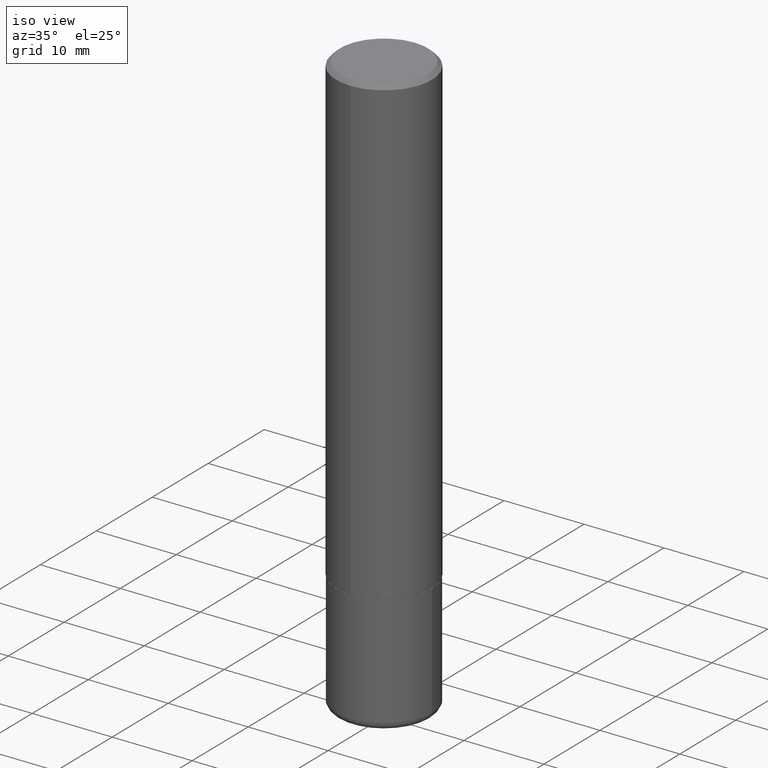
[diagram: clean part render]
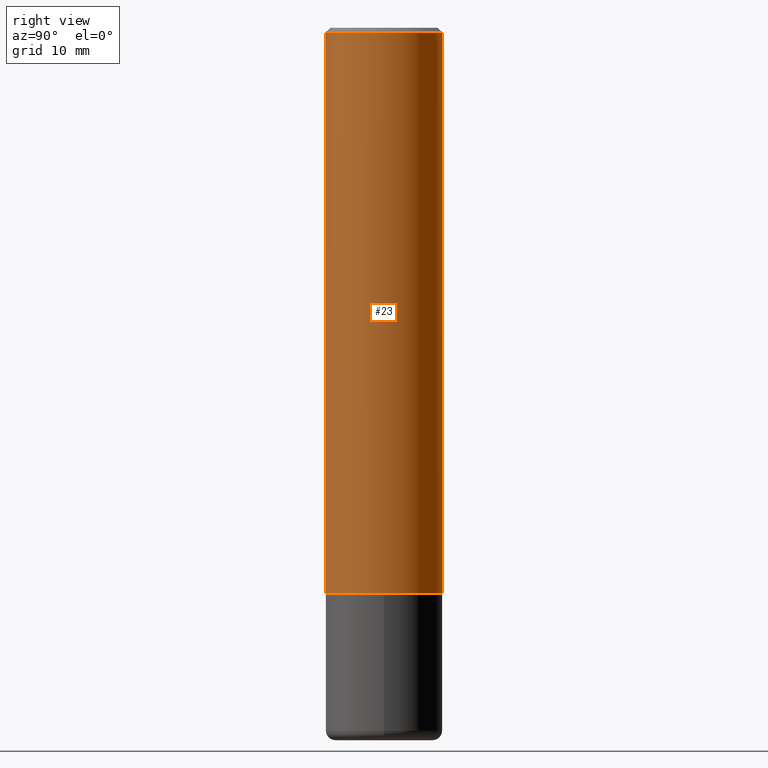
[diagram: tour spotlight — one face highlighted and labeled with its STEP entity id]
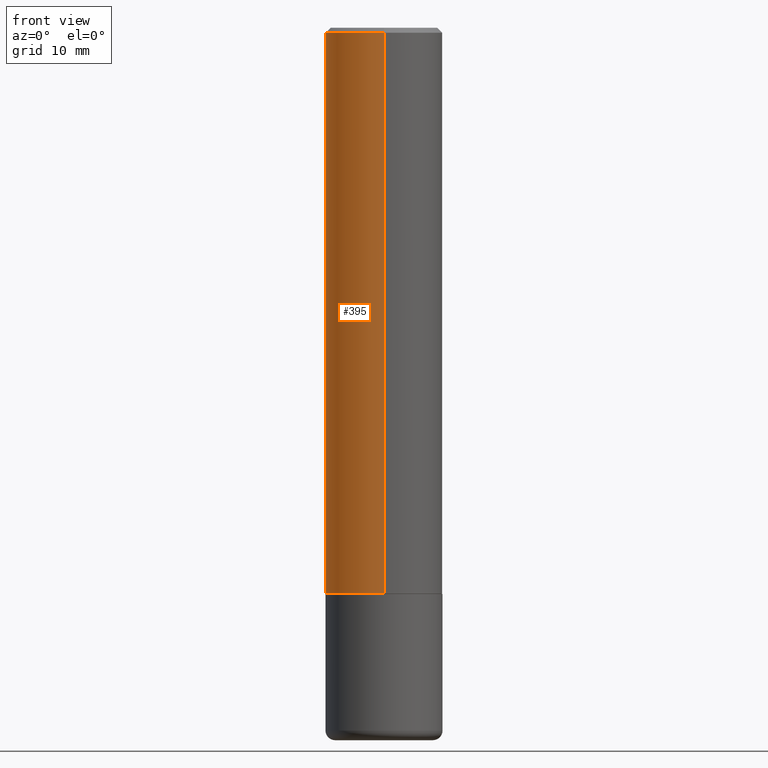
[diagram: tour spotlight — one face highlighted and labeled with its STEP entity id]
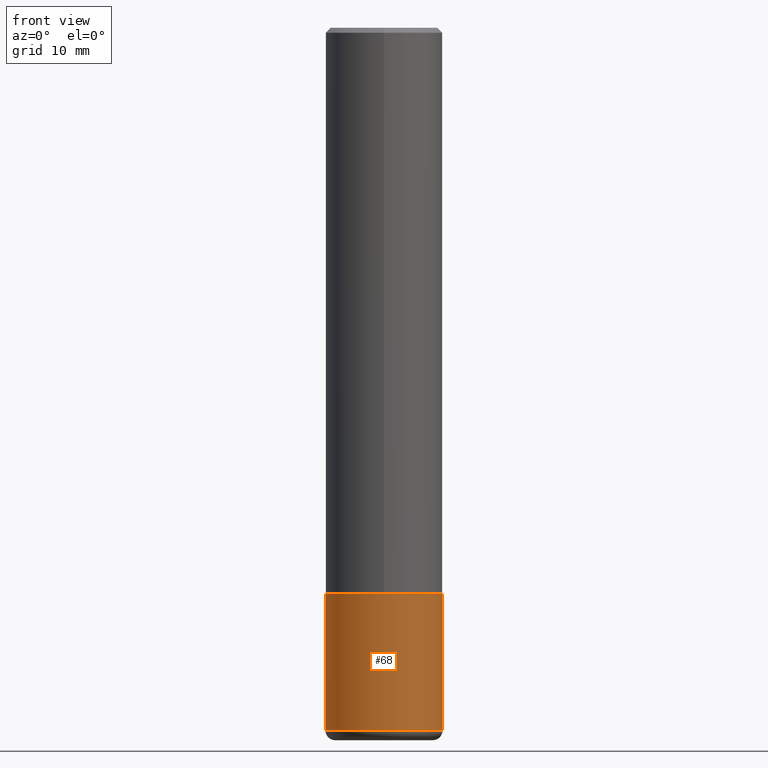
[diagram: tour spotlight — one face highlighted and labeled with its STEP entity id]
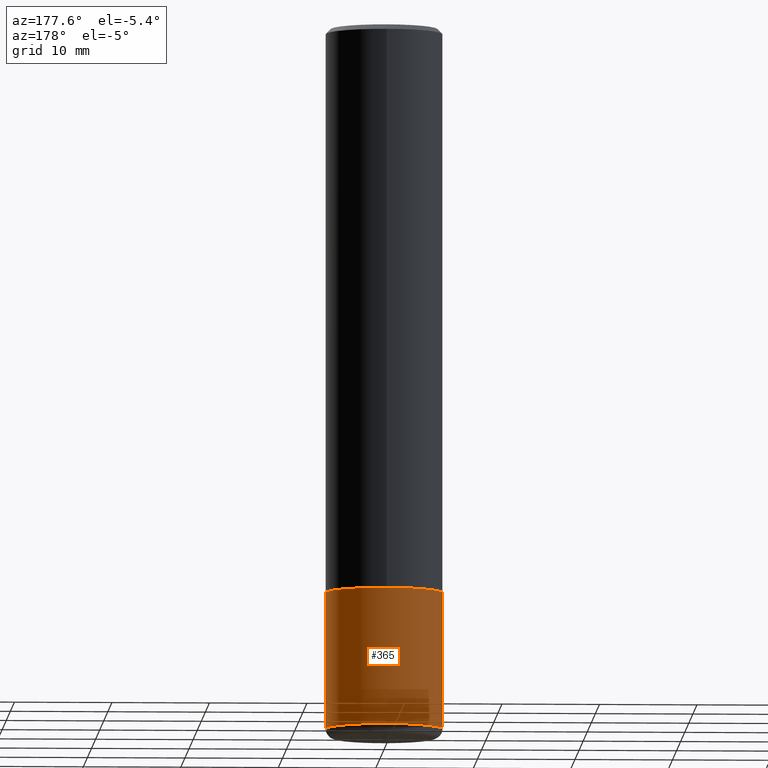
[diagram: tour spotlight — one face highlighted and labeled with its STEP entity id]
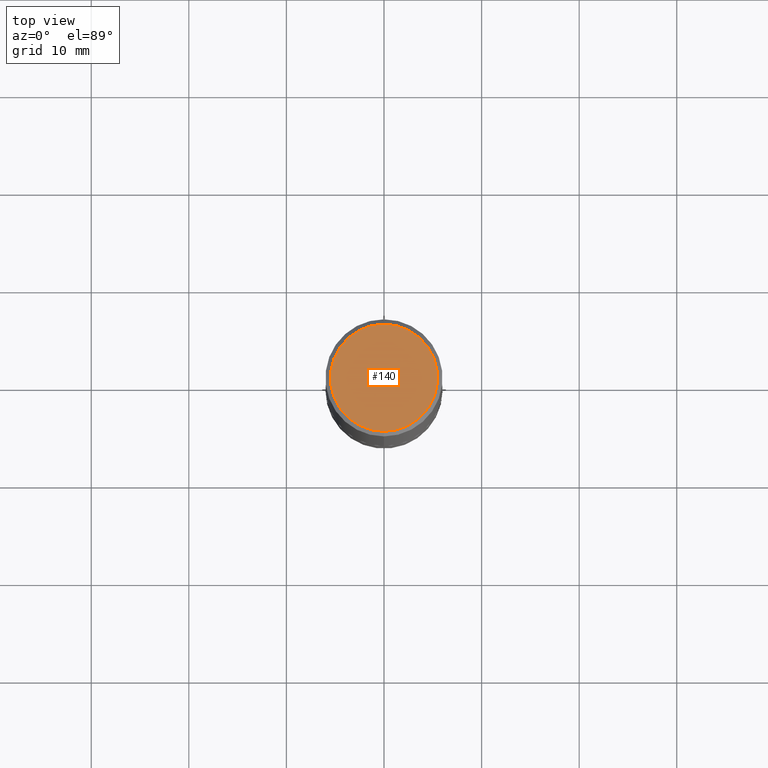
[diagram: tour spotlight — one face highlighted and labeled with its STEP entity id]
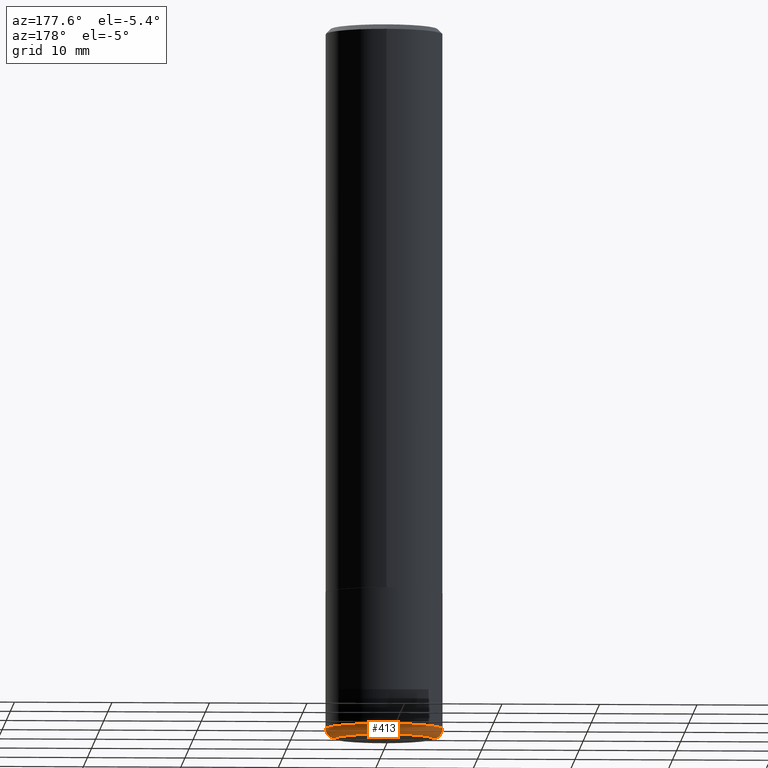
[diagram: tour spotlight — one face highlighted and labeled with its STEP entity id]
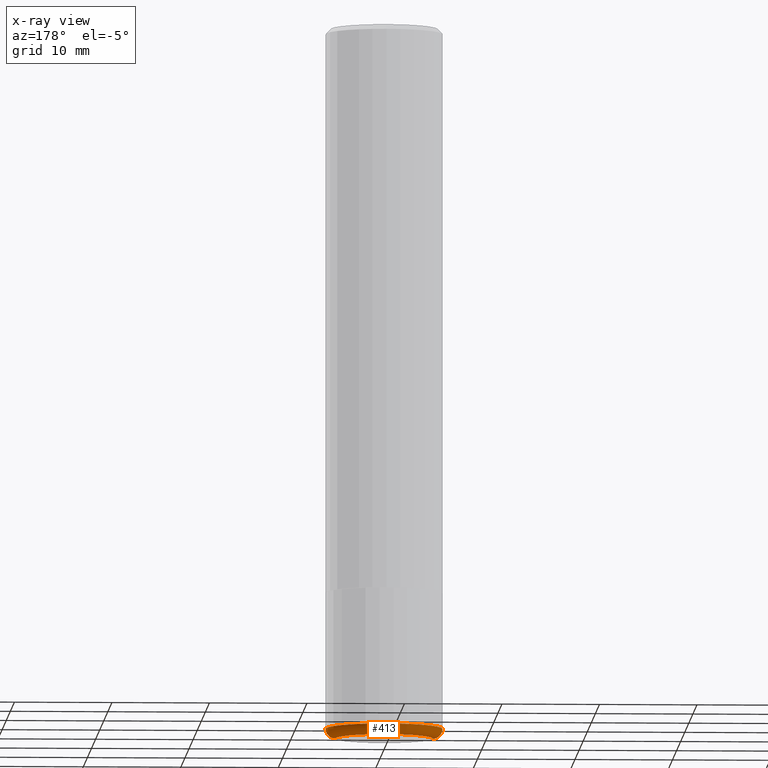
[diagram: x-ray of the same camera — body ghosted, this tour face saturated]
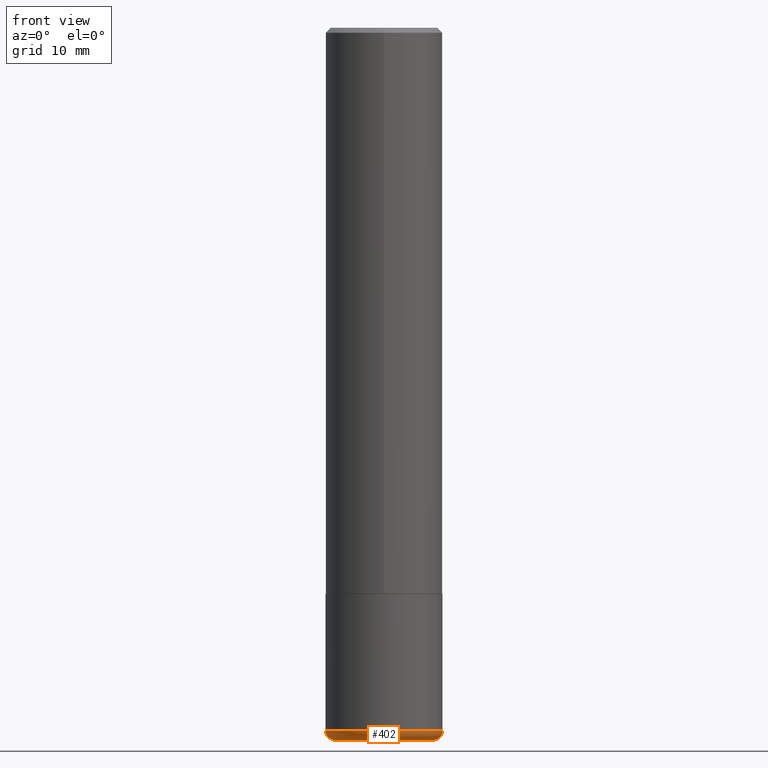
[diagram: tour spotlight — one face highlighted and labeled with its STEP entity id]
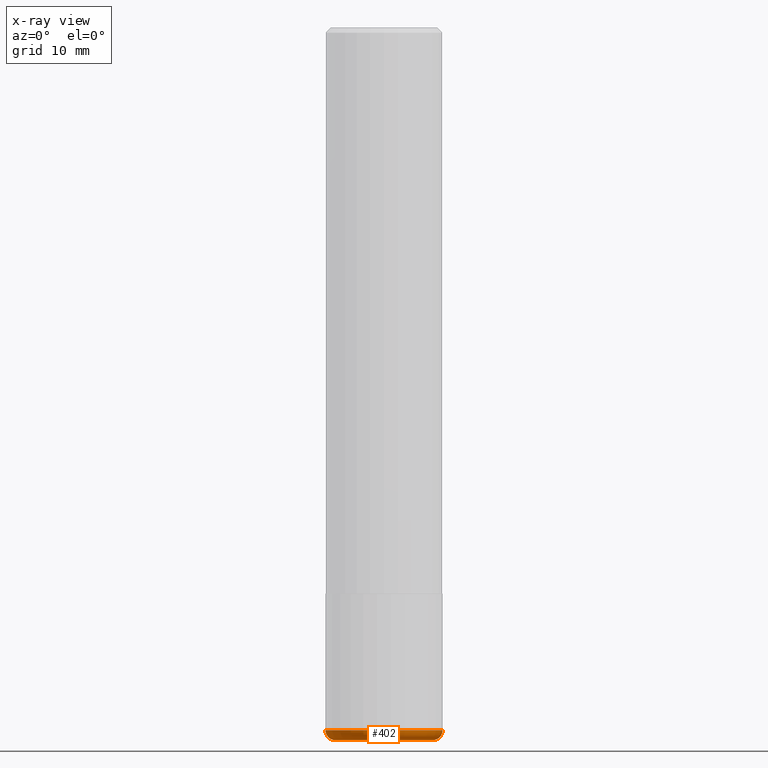
[diagram: x-ray of the same camera — body ghosted, this tour face saturated]
A machine part: a face-by-face anatomy tour. The part has 14 B-rep faces; the first image is the clean iso view, then the 7 largest visible faces are spotlighted one at a time (largest first), each with its STEP entity span.

Face 1 — right view, entity #23. In plain terms, the highlighted cylindrical surface (partial cylindrical patch) has radius 5.9995 mm, axis along (-0, 0, 1).
Definition (entity closure, byte-faithful):
#23 = ADVANCED_FACE ( 'NONE', ( #240 ), #149, .T. ) ;
#38 = CARTESIAN_POINT ( 'NONE',  ( -1.649375784469442094E-15, -0.2362000000000082367, -2.282399999999999096 ) ) ;
#41 = AXIS2_PLACEMENT_3D ( 'NONE', #411, #128, #251 ) ;
#42 = DIRECTION ( 'NONE',  ( -6.982962677686265922E-15, -1.000000000000000000, 3.490590113930062596E-15 ) ) ;
#51 = DIRECTION ( 'NONE',  ( -2.446091145215684809E-29, 3.490590113930062990E-15, 1.000000000000000000 ) ) ;
#56 = ORIENTED_EDGE ( 'NONE', *, *, #321, .T. ) ;
#58 = EDGE_CURVE ( 'NONE', #127, #288, #253, .T. ) ;
#61 = ORIENTED_EDGE ( 'NONE', *, *, #177, .F. ) ;
#65 = EDGE_CURVE ( 'NONE', #279, #171, #375, .T. ) ;
#94 = ORIENTED_EDGE ( 'NONE', *, *, #65, .F. ) ;
#118 = VECTOR ( 'NONE', #51, 39.37007874015748143 ) ;
#127 = VERTEX_POINT ( 'NONE', #373 ) ;
#128 = DIRECTION ( 'NONE',  ( -2.446091145215684809E-29, 3.490590113930062596E-15, 1.000000000000000000 ) ) ;
#147 = EDGE_LOOP ( 'NONE', ( #56, #200, #61, #94 ) ) ;
#149 = CYLINDRICAL_SURFACE ( 'NONE', #347, 0.2362000000000001321 ) ;
#156 = DIRECTION ( 'NONE',  ( -2.446091145215684809E-29, 3.490590113930062990E-15, 1.000000000000000000 ) ) ;
#159 = CARTESIAN_POINT ( 'NONE',  ( -1.620449627073634881E-15, -0.2362000000000000210, -0.01999999999999922673 ) ) ;
#171 = VERTEX_POINT ( 'NONE', #159 ) ;
#177 = EDGE_CURVE ( 'NONE', #171, #288, #225, .T. ) ;
#200 = ORIENTED_EDGE ( 'NONE', *, *, #58, .T. ) ;
#225 = CIRCLE ( 'NONE', #41, 0.2361999999999999655 ) ;
#238 = DIRECTION ( 'NONE',  ( -2.446091145215684809E-29, 3.490590113930062596E-15, 1.000000000000000000 ) ) ;
#240 = FACE_OUTER_BOUND ( 'NONE', #147, .T. ) ;
#245 = CARTESIAN_POINT ( 'NONE',  ( 1.678301941865357380E-15, 0.2362000000000001321, -8.244773849102812872E-16 ) ) ;
#251 = DIRECTION ( 'NONE',  ( -6.982962677686265922E-15, -1.000000000000000000, 3.487819265831412139E-15 ) ) ;
#253 = LINE ( 'NONE', #245, #118 ) ;
#276 = CARTESIAN_POINT ( 'NONE',  ( 0.000000000000000000, 0.000000000000000000, 0.000000000000000000 ) ) ;
#279 = VERTEX_POINT ( 'NONE', #38 ) ;
#288 = VERTEX_POINT ( 'NONE', #317 ) ;
#293 = DIRECTION ( 'NONE',  ( -6.982962677686265922E-15, -1.000000000000000000, 3.469747663417773058E-15 ) ) ;
#297 = CIRCLE ( 'NONE', #333, 0.2362000000000002709 ) ;
#306 = CARTESIAN_POINT ( 'NONE',  ( -1.649375784469496920E-15, -0.2362000000000001321, 8.244773849102812872E-16 ) ) ;
#317 = CARTESIAN_POINT ( 'NONE',  ( 1.649375784469496131E-15, 0.2361999999999998823, -0.02000000000000087472 ) ) ;
#321 = EDGE_CURVE ( 'NONE', #279, #127, #297, .T. ) ;
#322 = CARTESIAN_POINT ( 'NONE',  ( 5.582958429840278159E-29, -7.966922876033974946E-15, -2.282399999999999984 ) ) ;
#333 = AXIS2_PLACEMENT_3D ( 'NONE', #322, #417, #293 ) ;
#347 = AXIS2_PLACEMENT_3D ( 'NONE', #276, #238, #42 ) ;
#373 = CARTESIAN_POINT ( 'NONE',  ( 1.678301941865385976E-15, 0.2361999999999923050, -2.282400000000000873 ) ) ;
#375 = LINE ( 'NONE', #306, #386 ) ;
#386 = VECTOR ( 'NONE', #156, 39.37007874015748143 ) ;
#411 = CARTESIAN_POINT ( 'NONE',  ( 4.892182290431382475E-31, -6.981180227860141955E-17, -0.02000000000000005246 ) ) ;
#417 = DIRECTION ( 'NONE',  ( -2.446091145215684809E-29, 3.490590113930062596E-15, 1.000000000000000000 ) ) ;

Face 2 — front view, entity #395. In plain terms, the highlighted cylindrical surface (partial cylindrical patch) has radius 5.9995 mm, axis along (-0, 0, 1).
Definition (entity closure, byte-faithful):
#12 = ORIENTED_EDGE ( 'NONE', *, *, #123, .F. ) ;
#13 = EDGE_CURVE ( 'NONE', #127, #279, #62, .T. ) ;
#26 = AXIS2_PLACEMENT_3D ( 'NONE', #341, #221, #284 ) ;
#38 = CARTESIAN_POINT ( 'NONE',  ( -1.649375784469442094E-15, -0.2362000000000082367, -2.282399999999999096 ) ) ;
#51 = DIRECTION ( 'NONE',  ( -2.446091145215684809E-29, 3.490590113930062990E-15, 1.000000000000000000 ) ) ;
#58 = EDGE_CURVE ( 'NONE', #127, #288, #253, .T. ) ;
#62 = CIRCLE ( 'NONE', #274, 0.2362000000000002709 ) ;
#65 = EDGE_CURVE ( 'NONE', #279, #171, #375, .T. ) ;
#95 = DIRECTION ( 'NONE',  ( -6.982962677686265922E-15, -1.000000000000000000, 3.490590113930062596E-15 ) ) ;
#104 = CYLINDRICAL_SURFACE ( 'NONE', #226, 0.2362000000000001321 ) ;
#105 = ORIENTED_EDGE ( 'NONE', *, *, #58, .F. ) ;
#108 = CARTESIAN_POINT ( 'NONE',  ( 0.000000000000000000, 0.000000000000000000, 0.000000000000000000 ) ) ;
#118 = VECTOR ( 'NONE', #51, 39.37007874015748143 ) ;
#119 = CARTESIAN_POINT ( 'NONE',  ( 5.582958429840278159E-29, -7.966922876033974946E-15, -2.282399999999999984 ) ) ;
#123 = EDGE_CURVE ( 'NONE', #288, #171, #212, .T. ) ;
#127 = VERTEX_POINT ( 'NONE', #373 ) ;
#141 = FACE_OUTER_BOUND ( 'NONE', #318, .T. ) ;
#156 = DIRECTION ( 'NONE',  ( -2.446091145215684809E-29, 3.490590113930062990E-15, 1.000000000000000000 ) ) ;
#159 = CARTESIAN_POINT ( 'NONE',  ( -1.620449627073634881E-15, -0.2362000000000000210, -0.01999999999999922673 ) ) ;
#171 = VERTEX_POINT ( 'NONE', #159 ) ;
#206 = DIRECTION ( 'NONE',  ( -2.446091145215684809E-29, 3.490590113930062596E-15, 1.000000000000000000 ) ) ;
#212 = CIRCLE ( 'NONE', #26, 0.2361999999999999655 ) ;
#221 = DIRECTION ( 'NONE',  ( -2.446091145215684809E-29, 3.490590113930062596E-15, 1.000000000000000000 ) ) ;
#226 = AXIS2_PLACEMENT_3D ( 'NONE', #108, #206, #95 ) ;
#245 = CARTESIAN_POINT ( 'NONE',  ( 1.678301941865357380E-15, 0.2362000000000001321, -8.244773849102812872E-16 ) ) ;
#253 = LINE ( 'NONE', #245, #118 ) ;
#274 = AXIS2_PLACEMENT_3D ( 'NONE', #119, #335, #330 ) ;
#279 = VERTEX_POINT ( 'NONE', #38 ) ;
#284 = DIRECTION ( 'NONE',  ( -6.982962677686265922E-15, -1.000000000000000000, 3.487819265831412139E-15 ) ) ;
#288 = VERTEX_POINT ( 'NONE', #317 ) ;
#291 = ORIENTED_EDGE ( 'NONE', *, *, #13, .T. ) ;
#306 = CARTESIAN_POINT ( 'NONE',  ( -1.649375784469496920E-15, -0.2362000000000001321, 8.244773849102812872E-16 ) ) ;
#317 = CARTESIAN_POINT ( 'NONE',  ( 1.649375784469496131E-15, 0.2361999999999998823, -0.02000000000000087472 ) ) ;
#318 = EDGE_LOOP ( 'NONE', ( #105, #291, #325, #12 ) ) ;
#325 = ORIENTED_EDGE ( 'NONE', *, *, #65, .T. ) ;
#330 = DIRECTION ( 'NONE',  ( -6.982962677686265922E-15, -1.000000000000000000, 3.469747663417773058E-15 ) ) ;
#335 = DIRECTION ( 'NONE',  ( -2.446091145215684809E-29, 3.490590113930062596E-15, 1.000000000000000000 ) ) ;
#341 = CARTESIAN_POINT ( 'NONE',  ( 4.892182290431382475E-31, -6.981180227860141955E-17, -0.02000000000000005246 ) ) ;
#373 = CARTESIAN_POINT ( 'NONE',  ( 1.678301941865385976E-15, 0.2361999999999923050, -2.282400000000000873 ) ) ;
#375 = LINE ( 'NONE', #306, #386 ) ;
#386 = VECTOR ( 'NONE', #156, 39.37007874015748143 ) ;
#395 = ADVANCED_FACE ( 'NONE', ( #141 ), #104, .T. ) ;

Face 3 — front view, entity #68. In plain terms, the highlighted cylindrical surface (partial cylindrical patch) has radius 5.9995 mm, axis along (-0, 0, 1).
Definition (entity closure, byte-faithful):
#9 = DIRECTION ( 'NONE',  ( -2.445468806185136597E-29, 3.491481338843145583E-15, 1.000000000000000000 ) ) ;
#18 = VECTOR ( 'NONE', #282, 39.37007874015748143 ) ;
#19 = DIRECTION ( 'NONE',  ( -2.445468806185136597E-29, 3.491481338843145583E-15, 1.000000000000000000 ) ) ;
#24 = CARTESIAN_POINT ( 'NONE',  ( 0.2362000000000000210, -1.154632878755427583E-14, -2.834600000000000009 ) ) ;
#25 = ORIENTED_EDGE ( 'NONE', *, *, #181, .T. ) ;
#32 = LINE ( 'NONE', #308, #310 ) ;
#57 = CARTESIAN_POINT ( 'NONE',  ( 0.2361999999999999933, -9.621824273583934567E-15, -2.283399999999999874 ) ) ;
#60 = DIRECTION ( 'NONE',  ( -2.445468806185136877E-29, 3.491481338843145188E-15, 1.000000000000000000 ) ) ;
#68 = ADVANCED_FACE ( 'NONE', ( #184 ), #302, .T. ) ;
#70 = VERTEX_POINT ( 'NONE', #193 ) ;
#96 = DIRECTION ( 'NONE',  ( -2.445468806185136597E-29, 3.491481338843145583E-15, 1.000000000000000000 ) ) ;
#97 = VERTEX_POINT ( 'NONE', #346 ) ;
#98 = CIRCLE ( 'NONE', #326, 0.2361999999999999933 ) ;
#102 = VERTEX_POINT ( 'NONE', #57 ) ;
#131 = CARTESIAN_POINT ( 'NONE',  ( 6.931925878012387517E-29, -9.896953003084780885E-15, -2.834600000000000009 ) ) ;
#145 = AXIS2_PLACEMENT_3D ( 'NONE', #154, #19, #152 ) ;
#146 = EDGE_CURVE ( 'NONE', #97, #70, #32, .T. ) ;
#152 = DIRECTION ( 'NONE',  ( 1.000000000000000000, -6.982962677686266711E-15, 4.876176775795936353E-29 ) ) ;
#154 = CARTESIAN_POINT ( 'NONE',  ( 0.000000000000000000, 0.000000000000000000, 0.000000000000000000 ) ) ;
#160 = VERTEX_POINT ( 'NONE', #24 ) ;
#166 = ORIENTED_EDGE ( 'NONE', *, *, #146, .F. ) ;
#168 = EDGE_CURVE ( 'NONE', #160, #102, #418, .T. ) ;
#181 = EDGE_CURVE ( 'NONE', #97, #160, #98, .T. ) ;
#184 = FACE_OUTER_BOUND ( 'NONE', #186, .T. ) ;
#186 = EDGE_LOOP ( 'NONE', ( #166, #25, #307, #337 ) ) ;
#193 = CARTESIAN_POINT ( 'NONE',  ( -0.2361999999999999933, -7.256398804234252280E-15, -2.283399999999999874 ) ) ;
#215 = DIRECTION ( 'NONE',  ( 1.000000000000000000, -6.982962677686265133E-15, 0.000000000000000000 ) ) ;
#229 = EDGE_CURVE ( 'NONE', #70, #102, #393, .T. ) ;
#259 = CARTESIAN_POINT ( 'NONE',  ( 5.583983472043140562E-29, -7.972448489114438042E-15, -2.283399999999999874 ) ) ;
#282 = DIRECTION ( 'NONE',  ( -2.445468806185136877E-29, 3.491481338843145188E-15, 1.000000000000000000 ) ) ;
#283 = DIRECTION ( 'NONE',  ( 1.000000000000000000, -6.982962677686269077E-15, 0.000000000000000000 ) ) ;
#302 = CYLINDRICAL_SURFACE ( 'NONE', #145, 0.2361999999999999933 ) ;
#307 = ORIENTED_EDGE ( 'NONE', *, *, #168, .T. ) ;
#308 = CARTESIAN_POINT ( 'NONE',  ( -0.2361999999999999933, 1.678301941865356591E-15, -1.161852468318208757E-29 ) ) ;
#310 = VECTOR ( 'NONE', #60, 39.37007874015748143 ) ;
#326 = AXIS2_PLACEMENT_3D ( 'NONE', #131, #96, #215 ) ;
#337 = ORIENTED_EDGE ( 'NONE', *, *, #229, .F. ) ;
#346 = CARTESIAN_POINT ( 'NONE',  ( -0.2362000000000000210, -8.218651061219422913E-15, -2.834600000000000009 ) ) ;
#377 = CARTESIAN_POINT ( 'NONE',  ( 0.2361999999999999933, -1.649375784469496131E-15, 1.151752954443000088E-29 ) ) ;
#393 = CIRCLE ( 'NONE', #410, 0.2361999999999999933 ) ;
#410 = AXIS2_PLACEMENT_3D ( 'NONE', #259, #9, #283 ) ;
#418 = LINE ( 'NONE', #377, #18 ) ;

Face 4 — auxiliary view, entity #365. In plain terms, the highlighted cylindrical surface (partial cylindrical patch) has radius 5.9995 mm, axis along (-0, 0, 1).
Definition (entity closure, byte-faithful):
#18 = VECTOR ( 'NONE', #282, 39.37007874015748143 ) ;
#21 = DIRECTION ( 'NONE',  ( -2.445468806185136597E-29, 3.491481338843145583E-15, 1.000000000000000000 ) ) ;
#24 = CARTESIAN_POINT ( 'NONE',  ( 0.2362000000000000210, -1.154632878755427583E-14, -2.834600000000000009 ) ) ;
#32 = LINE ( 'NONE', #308, #310 ) ;
#35 = FACE_OUTER_BOUND ( 'NONE', #350, .T. ) ;
#57 = CARTESIAN_POINT ( 'NONE',  ( 0.2361999999999999933, -9.621824273583934567E-15, -2.283399999999999874 ) ) ;
#60 = DIRECTION ( 'NONE',  ( -2.445468806185136877E-29, 3.491481338843145188E-15, 1.000000000000000000 ) ) ;
#63 = CYLINDRICAL_SURFACE ( 'NONE', #320, 0.2361999999999999933 ) ;
#70 = VERTEX_POINT ( 'NONE', #193 ) ;
#74 = ORIENTED_EDGE ( 'NONE', *, *, #111, .T. ) ;
#87 = CARTESIAN_POINT ( 'NONE',  ( 5.583983472043140562E-29, -7.972448489114438042E-15, -2.283399999999999874 ) ) ;
#97 = VERTEX_POINT ( 'NONE', #346 ) ;
#102 = VERTEX_POINT ( 'NONE', #57 ) ;
#111 = EDGE_CURVE ( 'NONE', #160, #97, #299, .T. ) ;
#144 = EDGE_CURVE ( 'NONE', #102, #70, #338, .T. ) ;
#146 = EDGE_CURVE ( 'NONE', #97, #70, #32, .T. ) ;
#158 = CARTESIAN_POINT ( 'NONE',  ( 0.000000000000000000, 0.000000000000000000, 0.000000000000000000 ) ) ;
#160 = VERTEX_POINT ( 'NONE', #24 ) ;
#165 = DIRECTION ( 'NONE',  ( -2.445468806185136597E-29, 3.491481338843145583E-15, 1.000000000000000000 ) ) ;
#168 = EDGE_CURVE ( 'NONE', #160, #102, #418, .T. ) ;
#188 = DIRECTION ( 'NONE',  ( -2.445468806185136597E-29, 3.491481338843145583E-15, 1.000000000000000000 ) ) ;
#193 = CARTESIAN_POINT ( 'NONE',  ( -0.2361999999999999933, -7.256398804234252280E-15, -2.283399999999999874 ) ) ;
#205 = ORIENTED_EDGE ( 'NONE', *, *, #146, .T. ) ;
#219 = CARTESIAN_POINT ( 'NONE',  ( 6.931925878012387517E-29, -9.896953003084780885E-15, -2.834600000000000009 ) ) ;
#222 = DIRECTION ( 'NONE',  ( 1.000000000000000000, -6.982962677686269077E-15, 0.000000000000000000 ) ) ;
#224 = DIRECTION ( 'NONE',  ( 1.000000000000000000, -6.982962677686265133E-15, 0.000000000000000000 ) ) ;
#266 = AXIS2_PLACEMENT_3D ( 'NONE', #87, #188, #222 ) ;
#271 = ORIENTED_EDGE ( 'NONE', *, *, #168, .F. ) ;
#282 = DIRECTION ( 'NONE',  ( -2.445468806185136877E-29, 3.491481338843145188E-15, 1.000000000000000000 ) ) ;
#292 = DIRECTION ( 'NONE',  ( 1.000000000000000000, -6.982962677686266711E-15, 4.876176775795936353E-29 ) ) ;
#299 = CIRCLE ( 'NONE', #332, 0.2361999999999999933 ) ;
#308 = CARTESIAN_POINT ( 'NONE',  ( -0.2361999999999999933, 1.678301941865356591E-15, -1.161852468318208757E-29 ) ) ;
#310 = VECTOR ( 'NONE', #60, 39.37007874015748143 ) ;
#320 = AXIS2_PLACEMENT_3D ( 'NONE', #158, #165, #292 ) ;
#332 = AXIS2_PLACEMENT_3D ( 'NONE', #219, #21, #224 ) ;
#338 = CIRCLE ( 'NONE', #266, 0.2361999999999999933 ) ;
#346 = CARTESIAN_POINT ( 'NONE',  ( -0.2362000000000000210, -8.218651061219422913E-15, -2.834600000000000009 ) ) ;
#350 = EDGE_LOOP ( 'NONE', ( #74, #205, #409, #271 ) ) ;
#365 = ADVANCED_FACE ( 'NONE', ( #35 ), #63, .T. ) ;
#377 = CARTESIAN_POINT ( 'NONE',  ( 0.2361999999999999933, -1.649375784469496131E-15, 1.151752954443000088E-29 ) ) ;
#409 = ORIENTED_EDGE ( 'NONE', *, *, #144, .F. ) ;
#418 = LINE ( 'NONE', #377, #18 ) ;

Face 5 — top view, entity #140. In plain terms, the highlighted planar face has unit normal (0, -0, -1).
Definition (entity closure, byte-faithful):
#1 = VERTEX_POINT ( 'NONE', #398 ) ;
#14 = AXIS2_PLACEMENT_3D ( 'NONE', #66, #351, #258 ) ;
#55 = CARTESIAN_POINT ( 'NONE',  ( 1.509716530915770323E-15, 0.2161999999999999478, -7.398221303294321306E-16 ) ) ;
#66 = CARTESIAN_POINT ( 'NONE',  ( -7.261687448191642021E-46, 1.036248157256328917E-31, 2.968690460449436484E-17 ) ) ;
#101 = DIRECTION ( 'NONE',  ( -6.982962677686265922E-15, -1.000000000000000000, 3.490590113930062596E-15 ) ) ;
#126 = PLANE ( 'NONE',  #135 ) ;
#135 = AXIS2_PLACEMENT_3D ( 'NONE', #55, #187, #344 ) ;
#140 = ADVANCED_FACE ( 'NONE', ( #370 ), #126, .F. ) ;
#163 = EDGE_LOOP ( 'NONE', ( #389, #170 ) ) ;
#170 = ORIENTED_EDGE ( 'NONE', *, *, #250, .T. ) ;
#182 = AXIS2_PLACEMENT_3D ( 'NONE', #243, #336, #101 ) ;
#187 = DIRECTION ( 'NONE',  ( 2.446091145215684249E-29, -3.490590113930062990E-15, -1.000000000000000000 ) ) ;
#203 = EDGE_CURVE ( 'NONE', #1, #207, #257, .T. ) ;
#207 = VERTEX_POINT ( 'NONE', #381 ) ;
#239 = CIRCLE ( 'NONE', #14, 0.2161999999999999478 ) ;
#243 = CARTESIAN_POINT ( 'NONE',  ( -7.261687448191642021E-46, 1.036248157256328917E-31, 2.968690460449436484E-17 ) ) ;
#250 = EDGE_CURVE ( 'NONE', #207, #1, #239, .T. ) ;
#257 = CIRCLE ( 'NONE', #182, 0.2161999999999999478 ) ;
#258 = DIRECTION ( 'NONE',  ( -6.982962677686265922E-15, -1.000000000000000000, 3.490590113930062596E-15 ) ) ;
#336 = DIRECTION ( 'NONE',  ( -2.446091145215684809E-29, 3.490590113930062596E-15, 1.000000000000000000 ) ) ;
#344 = DIRECTION ( 'NONE',  ( 6.982962677686265922E-15, 1.000000000000000000, -3.490590113930062990E-15 ) ) ;
#351 = DIRECTION ( 'NONE',  ( -2.446091145215684809E-29, 3.490590113930062596E-15, 1.000000000000000000 ) ) ;
#370 = FACE_OUTER_BOUND ( 'NONE', #163, .T. ) ;
#381 = CARTESIAN_POINT ( 'NONE',  ( -1.551844647095919747E-15, -0.2161999999999999478, 7.843524872361736162E-16 ) ) ;
#389 = ORIENTED_EDGE ( 'NONE', *, *, #203, .T. ) ;
#398 = CARTESIAN_POINT ( 'NONE',  ( 1.579546157692633424E-15, 0.2161999999999999478, -7.249786780271850344E-16 ) ) ;

Face 6 — auxiliary view, entity #413. An x-ray twin of the same camera follows (body ghosted, this face saturated) — the face is partly hidden behind the body. In plain terms, the highlighted toroidal blend (fillet) surface has major radius 4.9987 mm and minor (blend) radius 1.0008 mm.
Definition (entity closure, byte-faithful):
#21 = DIRECTION ( 'NONE',  ( -2.445468806185136597E-29, 3.491481338843145583E-15, 1.000000000000000000 ) ) ;
#24 = CARTESIAN_POINT ( 'NONE',  ( 0.2362000000000000210, -1.154632878755427583E-14, -2.834600000000000009 ) ) ;
#29 = DIRECTION ( 'NONE',  ( -2.445468806185136597E-29, 3.491481338843145583E-15, 1.000000000000000000 ) ) ;
#30 = ORIENTED_EDGE ( 'NONE', *, *, #75, .T. ) ;
#31 = DIRECTION ( 'NONE',  ( 1.000000000000000000, -6.982962677686270655E-15, 4.883557194083114583E-29 ) ) ;
#39 = ORIENTED_EDGE ( 'NONE', *, *, #90, .T. ) ;
#54 = ORIENTED_EDGE ( 'NONE', *, *, #296, .F. ) ;
#75 = EDGE_CURVE ( 'NONE', #412, #97, #362, .T. ) ;
#79 = AXIS2_PLACEMENT_3D ( 'NONE', #314, #192, #31 ) ;
#90 = EDGE_CURVE ( 'NONE', #195, #412, #175, .T. ) ;
#97 = VERTEX_POINT ( 'NONE', #346 ) ;
#111 = EDGE_CURVE ( 'NONE', #160, #97, #299, .T. ) ;
#114 = AXIS2_PLACEMENT_3D ( 'NONE', #262, #169, #232 ) ;
#124 = CARTESIAN_POINT ( 'NONE',  ( 7.028277348976082113E-29, -1.003451736783520168E-14, -2.874000000000000110 ) ) ;
#160 = VERTEX_POINT ( 'NONE', #24 ) ;
#162 = CARTESIAN_POINT ( 'NONE',  ( 0.1968000000000000027, -1.140876442280385662E-14, -2.874000000000000110 ) ) ;
#169 = DIRECTION ( 'NONE',  ( -6.982962677686266711E-15, -1.000000000000000000, 3.491481338843145583E-15 ) ) ;
#175 = CIRCLE ( 'NONE', #234, 0.1968000000000000027 ) ;
#192 = DIRECTION ( 'NONE',  ( -2.445468806185136597E-29, 3.491481338843145583E-15, 1.000000000000000000 ) ) ;
#195 = VERTEX_POINT ( 'NONE', #162 ) ;
#198 = CARTESIAN_POINT ( 'NONE',  ( -0.1968000000000000027, -8.427410162539374195E-15, -2.874000000000000110 ) ) ;
#219 = CARTESIAN_POINT ( 'NONE',  ( 6.931925878012387517E-29, -9.896953003084780885E-15, -2.834600000000000009 ) ) ;
#224 = DIRECTION ( 'NONE',  ( 1.000000000000000000, -6.982962677686265133E-15, 0.000000000000000000 ) ) ;
#231 = EDGE_LOOP ( 'NONE', ( #39, #30, #237, #54 ) ) ;
#232 = DIRECTION ( 'NONE',  ( 1.000000000000000000, -6.982962677686267499E-15, 0.000000000000000000 ) ) ;
#234 = AXIS2_PLACEMENT_3D ( 'NONE', #124, #29, #403 ) ;
#235 = CIRCLE ( 'NONE', #114, 0.03940000000000005997 ) ;
#236 = FACE_OUTER_BOUND ( 'NONE', #231, .T. ) ;
#237 = ORIENTED_EDGE ( 'NONE', *, *, #111, .F. ) ;
#248 = CARTESIAN_POINT ( 'NONE',  ( -0.1968000000000000027, -8.498604899108903108E-15, -2.834600000000000009 ) ) ;
#262 = CARTESIAN_POINT ( 'NONE',  ( 0.1968000000000000027, -1.127120005805343740E-14, -2.834600000000000009 ) ) ;
#295 = TOROIDAL_SURFACE ( 'NONE', #79, 0.1968000000000000027, 0.03940000000000005997 ) ;
#296 = EDGE_CURVE ( 'NONE', #195, #160, #235, .T. ) ;
#299 = CIRCLE ( 'NONE', #332, 0.2361999999999999933 ) ;
#313 = DIRECTION ( 'NONE',  ( 7.105427357601001859E-15, 1.000000000000000000, -3.491481338843145583E-15 ) ) ;
#314 = CARTESIAN_POINT ( 'NONE',  ( 6.931925878012387517E-29, -9.896953003084780885E-15, -2.834600000000000009 ) ) ;
#332 = AXIS2_PLACEMENT_3D ( 'NONE', #219, #21, #224 ) ;
#346 = CARTESIAN_POINT ( 'NONE',  ( -0.2362000000000000210, -8.218651061219422913E-15, -2.834600000000000009 ) ) ;
#362 = CIRCLE ( 'NONE', #399, 0.03940000000000005997 ) ;
#372 = DIRECTION ( 'NONE',  ( -1.000000000000000000, 7.105427357601014480E-15, 0.000000000000000000 ) ) ;
#399 = AXIS2_PLACEMENT_3D ( 'NONE', #248, #313, #372 ) ;
#403 = DIRECTION ( 'NONE',  ( 1.000000000000000000, -6.982962677686261977E-15, 0.000000000000000000 ) ) ;
#412 = VERTEX_POINT ( 'NONE', #198 ) ;
#413 = ADVANCED_FACE ( 'NONE', ( #236 ), #295, .T. ) ;

Face 7 — front view, entity #402. An x-ray twin of the same camera follows (body ghosted, this face saturated) — the face is partly hidden behind the body. In plain terms, the highlighted toroidal blend (fillet) surface has major radius 4.9987 mm and minor (blend) radius 1.0008 mm.
Definition (entity closure, byte-faithful):
#6 = AXIS2_PLACEMENT_3D ( 'NONE', #11, #265, #387 ) ;
#11 = CARTESIAN_POINT ( 'NONE',  ( 6.931925878012387517E-29, -9.896953003084780885E-15, -2.834600000000000009 ) ) ;
#24 = CARTESIAN_POINT ( 'NONE',  ( 0.2362000000000000210, -1.154632878755427583E-14, -2.834600000000000009 ) ) ;
#46 = CIRCLE ( 'NONE', #268, 0.1968000000000000027 ) ;
#67 = ORIENTED_EDGE ( 'NONE', *, *, #296, .T. ) ;
#73 = CARTESIAN_POINT ( 'NONE',  ( 7.028277348976082113E-29, -1.003451736783520168E-14, -2.874000000000000110 ) ) ;
#75 = EDGE_CURVE ( 'NONE', #412, #97, #362, .T. ) ;
#83 = EDGE_LOOP ( 'NONE', ( #270, #132, #67, #254 ) ) ;
#96 = DIRECTION ( 'NONE',  ( -2.445468806185136597E-29, 3.491481338843145583E-15, 1.000000000000000000 ) ) ;
#97 = VERTEX_POINT ( 'NONE', #346 ) ;
#98 = CIRCLE ( 'NONE', #326, 0.2361999999999999933 ) ;
#114 = AXIS2_PLACEMENT_3D ( 'NONE', #262, #169, #232 ) ;
#131 = CARTESIAN_POINT ( 'NONE',  ( 6.931925878012387517E-29, -9.896953003084780885E-15, -2.834600000000000009 ) ) ;
#132 = ORIENTED_EDGE ( 'NONE', *, *, #305, .T. ) ;
#160 = VERTEX_POINT ( 'NONE', #24 ) ;
#162 = CARTESIAN_POINT ( 'NONE',  ( 0.1968000000000000027, -1.140876442280385662E-14, -2.874000000000000110 ) ) ;
#169 = DIRECTION ( 'NONE',  ( -6.982962677686266711E-15, -1.000000000000000000, 3.491481338843145583E-15 ) ) ;
#181 = EDGE_CURVE ( 'NONE', #97, #160, #98, .T. ) ;
#194 = TOROIDAL_SURFACE ( 'NONE', #6, 0.1968000000000000027, 0.03940000000000005997 ) ;
#195 = VERTEX_POINT ( 'NONE', #162 ) ;
#198 = CARTESIAN_POINT ( 'NONE',  ( -0.1968000000000000027, -8.427410162539374195E-15, -2.874000000000000110 ) ) ;
#204 = DIRECTION ( 'NONE',  ( 1.000000000000000000, -6.982962677686261977E-15, 0.000000000000000000 ) ) ;
#215 = DIRECTION ( 'NONE',  ( 1.000000000000000000, -6.982962677686265133E-15, 0.000000000000000000 ) ) ;
#223 = DIRECTION ( 'NONE',  ( -2.445468806185136597E-29, 3.491481338843145583E-15, 1.000000000000000000 ) ) ;
#232 = DIRECTION ( 'NONE',  ( 1.000000000000000000, -6.982962677686267499E-15, 0.000000000000000000 ) ) ;
#235 = CIRCLE ( 'NONE', #114, 0.03940000000000005997 ) ;
#248 = CARTESIAN_POINT ( 'NONE',  ( -0.1968000000000000027, -8.498604899108903108E-15, -2.834600000000000009 ) ) ;
#254 = ORIENTED_EDGE ( 'NONE', *, *, #181, .F. ) ;
#262 = CARTESIAN_POINT ( 'NONE',  ( 0.1968000000000000027, -1.127120005805343740E-14, -2.834600000000000009 ) ) ;
#265 = DIRECTION ( 'NONE',  ( -2.445468806185136597E-29, 3.491481338843145583E-15, 1.000000000000000000 ) ) ;
#268 = AXIS2_PLACEMENT_3D ( 'NONE', #73, #223, #204 ) ;
#270 = ORIENTED_EDGE ( 'NONE', *, *, #75, .F. ) ;
#296 = EDGE_CURVE ( 'NONE', #195, #160, #235, .T. ) ;
#305 = EDGE_CURVE ( 'NONE', #412, #195, #46, .T. ) ;
#313 = DIRECTION ( 'NONE',  ( 7.105427357601001859E-15, 1.000000000000000000, -3.491481338843145583E-15 ) ) ;
#326 = AXIS2_PLACEMENT_3D ( 'NONE', #131, #96, #215 ) ;
#346 = CARTESIAN_POINT ( 'NONE',  ( -0.2362000000000000210, -8.218651061219422913E-15, -2.834600000000000009 ) ) ;
#356 = FACE_OUTER_BOUND ( 'NONE', #83, .T. ) ;
#362 = CIRCLE ( 'NONE', #399, 0.03940000000000005997 ) ;
#372 = DIRECTION ( 'NONE',  ( -1.000000000000000000, 7.105427357601014480E-15, 0.000000000000000000 ) ) ;
#387 = DIRECTION ( 'NONE',  ( 1.000000000000000000, -6.982962677686270655E-15, 4.883557194083114583E-29 ) ) ;
#399 = AXIS2_PLACEMENT_3D ( 'NONE', #248, #313, #372 ) ;
#402 = ADVANCED_FACE ( 'NONE', ( #356 ), #194, .T. ) ;
#412 = VERTEX_POINT ( 'NONE', #198 ) ;